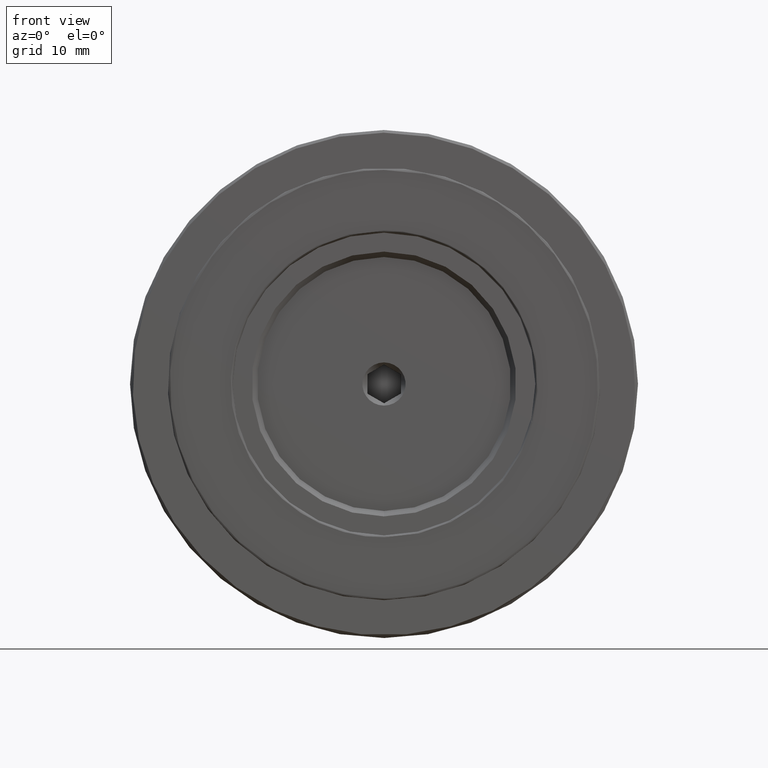
[diagram: clean part render]
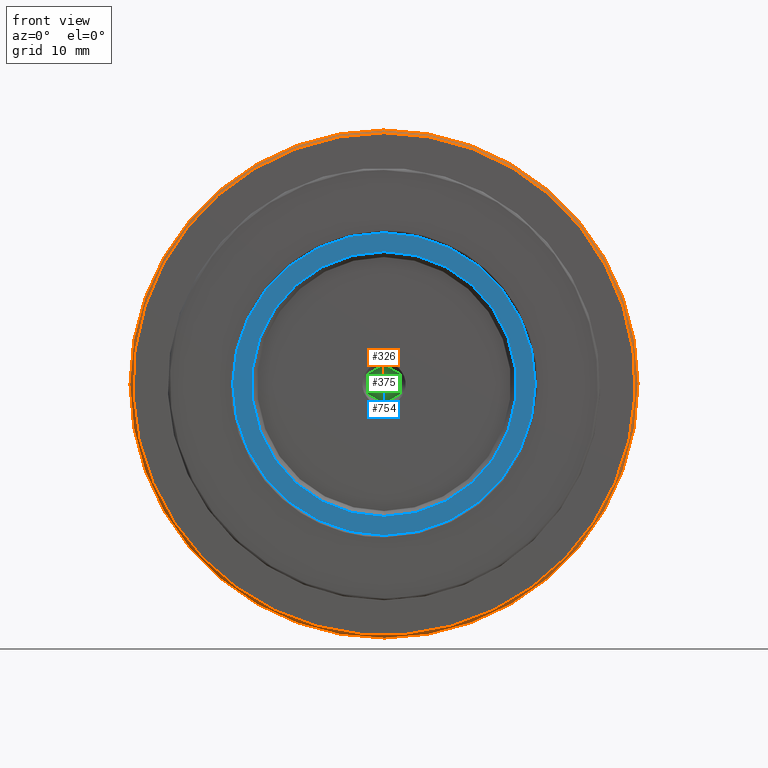
[diagram: same view with three faces highlighted in distinct colors, each labeled with its STEP entity id]
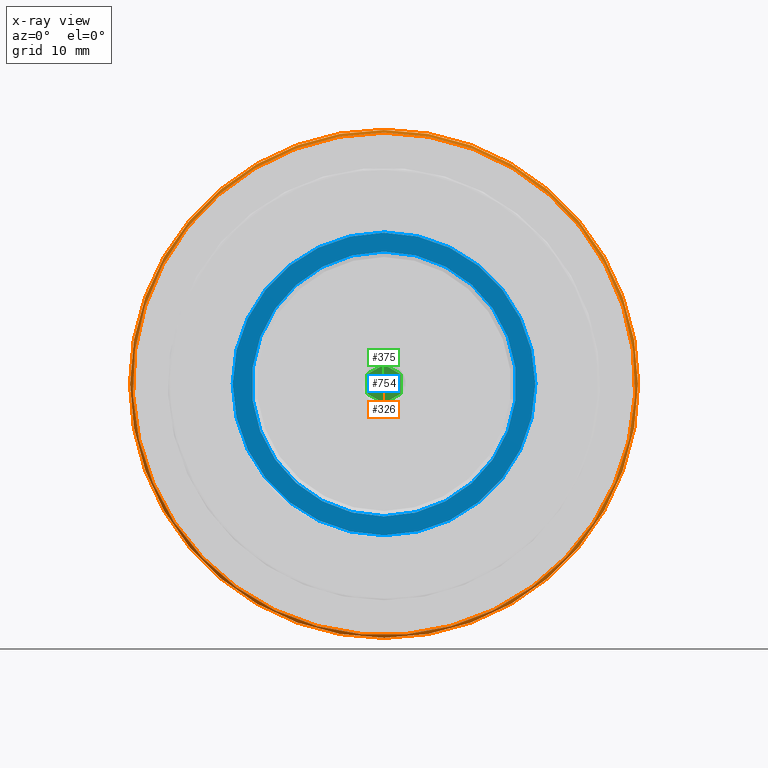
[diagram: x-ray of the same camera — body ghosted, the three highlighted faces saturated]
A machine part, front view with three faces highlighted in distinct colors.
The next image is the same camera in x-ray (body ghosted, the three faces saturated) — at least one of them is partly hidden behind the body in this view.
Their STEP definitions:

[orange] entity #326 — the highlighted conical surface has half-angle 45 deg.
#35 = EDGE_LOOP ( 'NONE', ( #499 ) ) ;
#124 = AXIS2_PLACEMENT_3D ( 'NONE', #932, #409, #698 ) ;
#135 = EDGE_CURVE ( 'NONE', #1263, #1263, #582, .T. ) ;
#185 = DIRECTION ( 'NONE',  ( 0.000000000000000000, 0.000000000000000000, 1.000000000000000000 ) ) ;
#215 = CARTESIAN_POINT ( 'NONE',  ( 0.000000000000000000, 0.2500000000000002220, -23.49999999999999645 ) ) ;
#296 = EDGE_LOOP ( 'NONE', ( #359 ) ) ;
#309 = DIRECTION ( 'NONE',  ( 0.000000000000000000, 1.000000000000000000, 0.000000000000000000 ) ) ;
#326 = ADVANCED_FACE ( 'NONE', ( #1190, #984 ), #406, .T. ) ;
#334 = EDGE_CURVE ( 'NONE', #1269, #1269, #771, .T. ) ;
#359 = ORIENTED_EDGE ( 'NONE', *, *, #135, .F. ) ;
#406 = CONICAL_SURFACE ( 'NONE', #968, 23.49999999999999645, 0.7853981633974482790 ) ;
#409 = DIRECTION ( 'NONE',  ( 0.000000000000000000, 1.000000000000000000, 0.000000000000000000 ) ) ;
#467 = CARTESIAN_POINT ( 'NONE',  ( 0.000000000000000000, 0.2500000000000002220, 0.000000000000000000 ) ) ;
#499 = ORIENTED_EDGE ( 'NONE', *, *, #334, .T. ) ;
#582 = CIRCLE ( 'NONE', #990, 23.49999999999999645 ) ;
#698 = DIRECTION ( 'NONE',  ( 0.000000000000000000, 0.000000000000000000, 1.000000000000000000 ) ) ;
#745 = CARTESIAN_POINT ( 'NONE',  ( 0.000000000000000000, 0.000000000000000000, 23.24999999999999645 ) ) ;
#771 = CIRCLE ( 'NONE', #124, 23.24999999999999645 ) ;
#932 = CARTESIAN_POINT ( 'NONE',  ( 0.000000000000000000, 0.000000000000000000, 0.000000000000000000 ) ) ;
#968 = AXIS2_PLACEMENT_3D ( 'NONE', #467, #1238, #185 ) ;
#984 = FACE_BOUND ( 'NONE', #35, .T. ) ;
#990 = AXIS2_PLACEMENT_3D ( 'NONE', #1072, #309, #1034 ) ;
#1034 = DIRECTION ( 'NONE',  ( 0.000000000000000000, 0.000000000000000000, -1.000000000000000000 ) ) ;
#1072 = CARTESIAN_POINT ( 'NONE',  ( 0.000000000000000000, 0.2500000000000002220, 0.000000000000000000 ) ) ;
#1190 = FACE_OUTER_BOUND ( 'NONE', #296, .T. ) ;
#1238 = DIRECTION ( 'NONE',  ( 0.000000000000000000, 1.000000000000000000, 0.000000000000000000 ) ) ;
#1263 = VERTEX_POINT ( 'NONE', #215 ) ;
#1269 = VERTEX_POINT ( 'NONE', #745 ) ;

[blue] entity #754 — the highlighted planar face has unit normal (0, 1, 0).
#109 = DIRECTION ( 'NONE',  ( 0.000000000000000000, -0.000000000000000000, 1.000000000000000000 ) ) ;
#110 = VERTEX_POINT ( 'NONE', #1153 ) ;
#145 = CIRCLE ( 'NONE', #341, 13.99999999999999822 ) ;
#152 = EDGE_CURVE ( 'NONE', #110, #110, #858, .T. ) ;
#222 = FACE_BOUND ( 'NONE', #606, .T. ) ;
#306 = DIRECTION ( 'NONE',  ( 0.000000000000000000, 0.000000000000000000, -1.000000000000000000 ) ) ;
#341 = AXIS2_PLACEMENT_3D ( 'NONE', #710, #1320, #306 ) ;
#342 = EDGE_CURVE ( 'NONE', #450, #450, #145, .T. ) ;
#373 = CARTESIAN_POINT ( 'NONE',  ( 0.000000000000000000, 0.000000000000000000, -13.99999999999999822 ) ) ;
#450 = VERTEX_POINT ( 'NONE', #373 ) ;
#521 = DIRECTION ( 'NONE',  ( 0.000000000000000000, 0.000000000000000000, -1.000000000000000000 ) ) ;
#606 = EDGE_LOOP ( 'NONE', ( #1022 ) ) ;
#710 = CARTESIAN_POINT ( 'NONE',  ( 0.000000000000000000, 0.000000000000000000, 0.000000000000000000 ) ) ;
#731 = AXIS2_PLACEMENT_3D ( 'NONE', #758, #1039, #109 ) ;
#754 = ADVANCED_FACE ( 'NONE', ( #861, #222 ), #1261, .F. ) ;
#758 = CARTESIAN_POINT ( 'NONE',  ( 0.000000000000000000, 0.000000000000000000, 0.000000000000000000 ) ) ;
#831 = DIRECTION ( 'NONE',  ( 0.000000000000000000, -1.000000000000000000, 0.000000000000000000 ) ) ;
#858 = CIRCLE ( 'NONE', #925, 12.25000000000001066 ) ;
#861 = FACE_OUTER_BOUND ( 'NONE', #1271, .T. ) ;
#925 = AXIS2_PLACEMENT_3D ( 'NONE', #1148, #831, #521 ) ;
#1022 = ORIENTED_EDGE ( 'NONE', *, *, #152, .F. ) ;
#1039 = DIRECTION ( 'NONE',  ( 0.000000000000000000, 1.000000000000000000, 0.000000000000000000 ) ) ;
#1148 = CARTESIAN_POINT ( 'NONE',  ( 0.000000000000000000, 0.000000000000000000, 0.000000000000000000 ) ) ;
#1153 = CARTESIAN_POINT ( 'NONE',  ( 0.000000000000000000, 0.000000000000000000, -12.25000000000001066 ) ) ;
#1186 = ORIENTED_EDGE ( 'NONE', *, *, #342, .F. ) ;
#1261 = PLANE ( 'NONE',  #731 ) ;
#1271 = EDGE_LOOP ( 'NONE', ( #1186 ) ) ;
#1320 = DIRECTION ( 'NONE',  ( 0.000000000000000000, 1.000000000000000000, 0.000000000000000000 ) ) ;

[green] entity #375 — the highlighted planar face has unit normal (0, -1, 0).
#93 = DIRECTION ( 'NONE',  ( 0.000000000000000000, -1.000000000000000000, 0.000000000000000000 ) ) ;
#99 = EDGE_CURVE ( 'NONE', #1276, #742, #626, .T. ) ;
#100 = LINE ( 'NONE', #1129, #189 ) ;
#101 = VECTOR ( 'NONE', #427, 1000.000000000000000 ) ;
#107 = VERTEX_POINT ( 'NONE', #733 ) ;
#115 = LINE ( 'NONE', #1151, #1349 ) ;
#122 = CARTESIAN_POINT ( 'NONE',  ( 1.550000000000000044, 3.500000000000000000, 0.8948929172439210600 ) ) ;
#175 = VERTEX_POINT ( 'NONE', #935 ) ;
#183 = ORIENTED_EDGE ( 'NONE', *, *, #535, .T. ) ;
#189 = VECTOR ( 'NONE', #1217, 1000.000000000000114 ) ;
#208 = CARTESIAN_POINT ( 'NONE',  ( 1.549999999999999822, 3.500000000000000000, 0.8948929172439210600 ) ) ;
#246 = EDGE_LOOP ( 'NONE', ( #860, #1096, #1127, #982, #183, #490 ) ) ;
#264 = VERTEX_POINT ( 'NONE', #784 ) ;
#321 = DIRECTION ( 'NONE',  ( 0.8660254037844387076, -0.000000000000000000, 0.4999999999999997224 ) ) ;
#328 = LINE ( 'NONE', #1066, #819 ) ;
#375 = ADVANCED_FACE ( 'NONE', ( #1225 ), #386, .T. ) ;
#386 = PLANE ( 'NONE',  #1207 ) ;
#395 = CARTESIAN_POINT ( 'NONE',  ( 0.000000000000000000, 3.500000000000000000, 0.000000000000000000 ) ) ;
#427 = DIRECTION ( 'NONE',  ( -0.000000000000000000, -0.000000000000000000, -1.000000000000000000 ) ) ;
#437 = EDGE_CURVE ( 'NONE', #742, #175, #100, .T. ) ;
#449 = CARTESIAN_POINT ( 'NONE',  ( -1.550000000000000488, 3.500000000000000000, -0.8948929172439197277 ) ) ;
#490 = ORIENTED_EDGE ( 'NONE', *, *, #1280, .T. ) ;
#535 = EDGE_CURVE ( 'NONE', #627, #107, #1337, .T. ) ;
#620 = EDGE_CURVE ( 'NONE', #264, #627, #115, .T. ) ;
#626 = LINE ( 'NONE', #1348, #101 ) ;
#627 = VERTEX_POINT ( 'NONE', #122 ) ;
#644 = LINE ( 'NONE', #650, #1322 ) ;
#650 = CARTESIAN_POINT ( 'NONE',  ( -5.302822042044525202E-16, 3.500000000000000000, -1.789785834487839900 ) ) ;
#655 = CARTESIAN_POINT ( 'NONE',  ( -1.550000000000000488, 3.500000000000000000, 0.8948929172439210600 ) ) ;
#704 = DIRECTION ( 'NONE',  ( 0.000000000000000000, -0.000000000000000000, -1.000000000000000000 ) ) ;
#733 = CARTESIAN_POINT ( 'NONE',  ( 4.947533334250865839E-18, 3.500000000000000000, 1.789785834487841232 ) ) ;
#742 = VERTEX_POINT ( 'NONE', #449 ) ;
#784 = CARTESIAN_POINT ( 'NONE',  ( 1.550000000000000044, 3.500000000000000000, -0.8948929172439205049 ) ) ;
#814 = VECTOR ( 'NONE', #923, 1000.000000000000000 ) ;
#819 = VECTOR ( 'NONE', #829, 1000.000000000000000 ) ;
#829 = DIRECTION ( 'NONE',  ( -0.8660254037844387076, -0.000000000000000000, -0.4999999999999998890 ) ) ;
#860 = ORIENTED_EDGE ( 'NONE', *, *, #99, .T. ) ;
#923 = DIRECTION ( 'NONE',  ( -0.8660254037844385966, -0.000000000000000000, 0.5000000000000001110 ) ) ;
#935 = CARTESIAN_POINT ( 'NONE',  ( -5.540200214480232898E-16, 3.500000000000000000, -1.789785834487840122 ) ) ;
#951 = DIRECTION ( 'NONE',  ( -1.211544031239643760E-16, -0.000000000000000000, 1.000000000000000000 ) ) ;
#979 = EDGE_CURVE ( 'NONE', #175, #264, #644, .T. ) ;
#982 = ORIENTED_EDGE ( 'NONE', *, *, #620, .T. ) ;
#1066 = CARTESIAN_POINT ( 'NONE',  ( -3.705363497162986983E-18, 3.500000000000000000, 1.789785834487841010 ) ) ;
#1096 = ORIENTED_EDGE ( 'NONE', *, *, #437, .T. ) ;
#1127 = ORIENTED_EDGE ( 'NONE', *, *, #979, .T. ) ;
#1129 = CARTESIAN_POINT ( 'NONE',  ( -1.550000000000000488, 3.500000000000000000, -0.8948929172439197277 ) ) ;
#1151 = CARTESIAN_POINT ( 'NONE',  ( 1.550000000000000044, 3.500000000000000000, -0.8948929172439205049 ) ) ;
#1207 = AXIS2_PLACEMENT_3D ( 'NONE', #395, #93, #704 ) ;
#1217 = DIRECTION ( 'NONE',  ( 0.8660254037844384856, -0.000000000000000000, -0.5000000000000003331 ) ) ;
#1225 = FACE_OUTER_BOUND ( 'NONE', #246, .T. ) ;
#1276 = VERTEX_POINT ( 'NONE', #655 ) ;
#1280 = EDGE_CURVE ( 'NONE', #107, #1276, #328, .T. ) ;
#1322 = VECTOR ( 'NONE', #321, 1000.000000000000114 ) ;
#1337 = LINE ( 'NONE', #208, #814 ) ;
#1348 = CARTESIAN_POINT ( 'NONE',  ( -1.550000000000000488, 3.500000000000000000, 0.8948929172439209490 ) ) ;
#1349 = VECTOR ( 'NONE', #951, 1000.000000000000000 ) ;